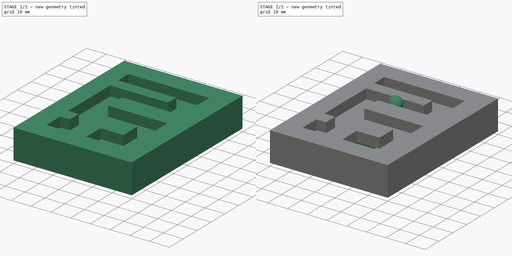
[diagram: build sequence overview — one tinted view per stage of 2, left to right]
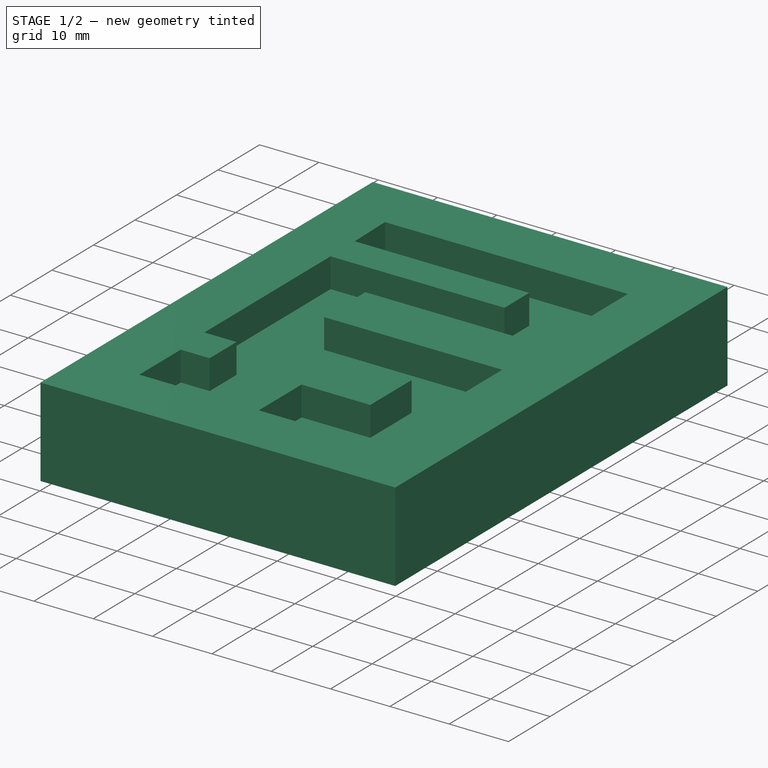
[diagram: stage 1 of 2 — iso view after this stage's code; geometry added in this stage tinted green]
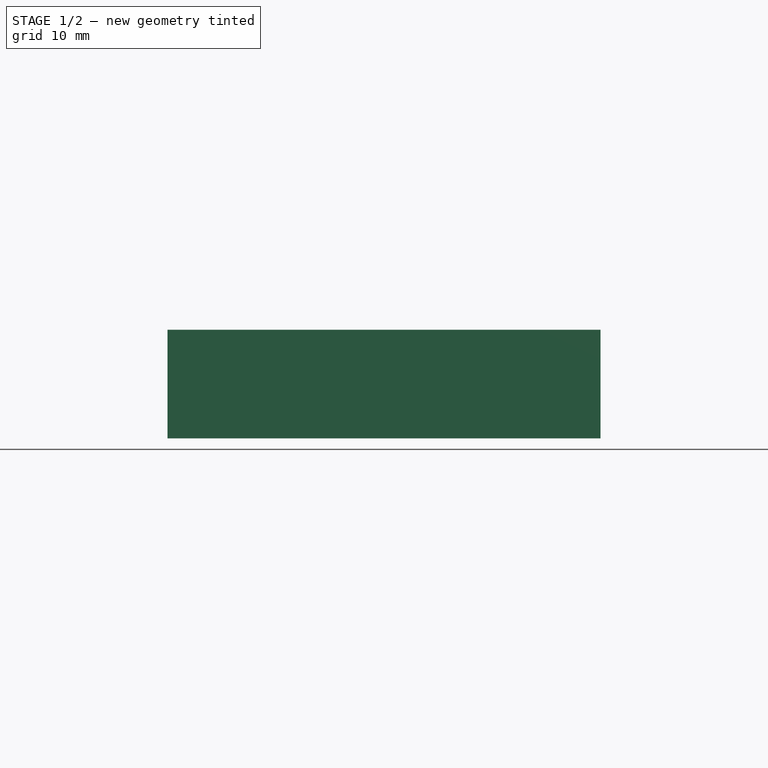
[diagram: stage 1 of 2 — front view after this stage's code; geometry added in this stage tinted green]
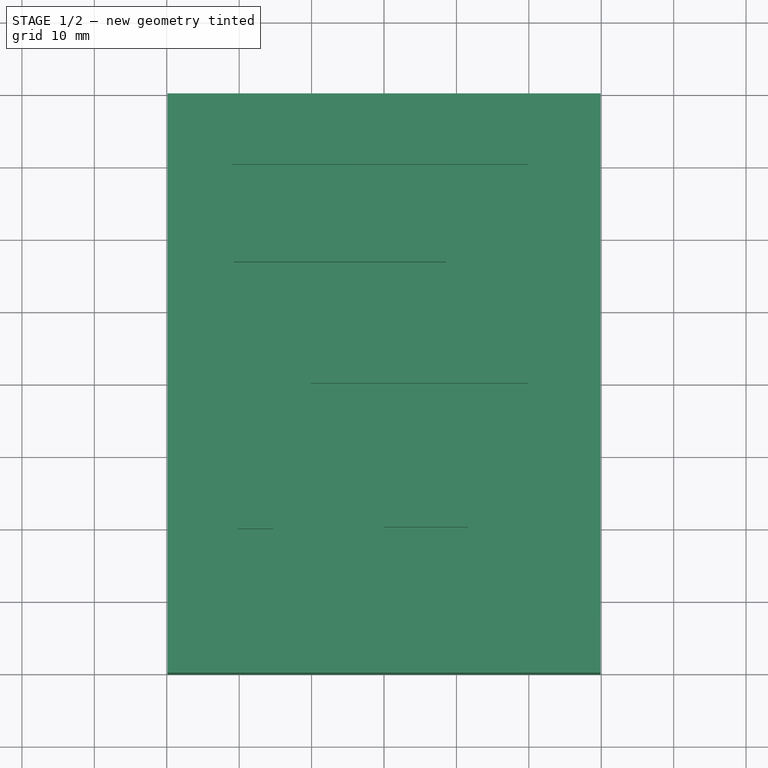
[diagram: stage 1 of 2 — top view after this stage's code; geometry added in this stage tinted green]
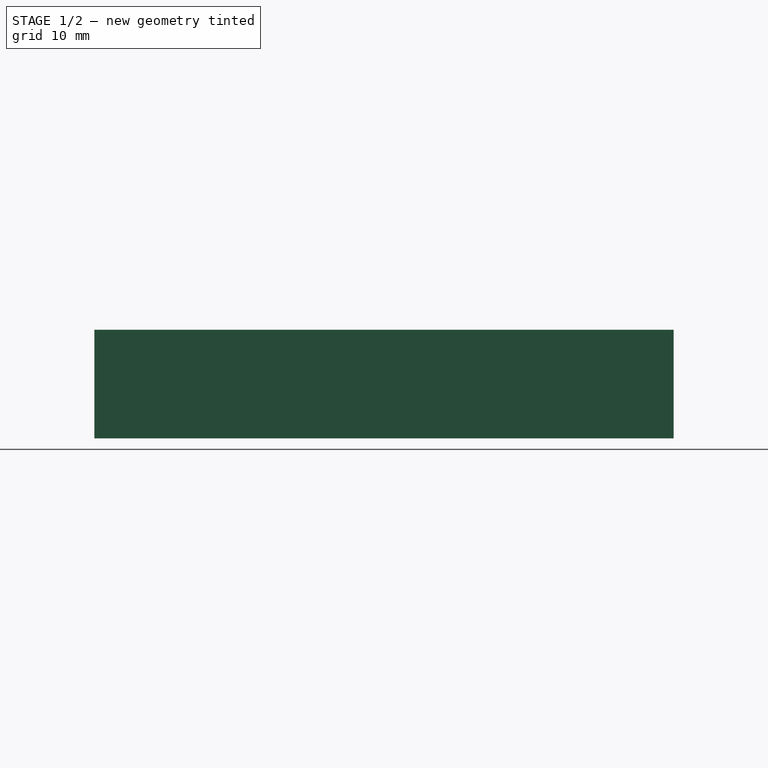
[diagram: stage 1 of 2 — right view after this stage's code; geometry added in this stage tinted green]
FCSTD DOCUMENT  (FreeCAD 1.0R39319 (Git))
Label: ojt1_t17r03_labyrinth
License: All rights reserved
LicenseURL: https://en.wikipedia.org/wiki/All_rights_reserved
objects: Sketcher::SketchObject×3, PartDesign::Pocket×2, PartDesign::Pad×1, Part::Sphere×1, PartDesign::Body×1
note: 17 computed .brp shape members not serialized (recipe doc carries the construction recipe); baked Part::Feature solids carry a one-line shape summary decoded from their .brp

FEATURE [Sketcher::SketchObject] Sketch
  ArcFitTolerance = 1e-06
  AttachmentSupport = -> [XY_Plane]
  FullyConstrained = false
  MakeInternals = false
  MapMode = 5
  sketch-geometry (4):
    g0: LineSegment StartX=-29.902 StartY=40.0002 StartZ=0 EndX=29.9019 EndY=40.0002 EndZ=0
    g1: LineSegment StartX=29.9019 StartY=40.0002 StartZ=0 EndX=29.9019 EndY=-39.9998 EndZ=0
    g2: LineSegment StartX=29.9019 StartY=-39.9998 StartZ=0 EndX=-29.902 EndY=-39.9998 EndZ=0
    g3: LineSegment StartX=-29.902 StartY=-39.9998 StartZ=0 EndX=-29.902 EndY=40.0002 EndZ=0
  constraints (8):
    c: Horizontal(g0)
    c: Coincident(g1,g0)
    c: Vertical(g1)
    c: Coincident(g2,g1)
    c: Horizontal(g2)
    c: Coincident(g3,g2)
    c: Coincident(g3,g0)
    c: Vertical(g3)
FEATURE [PartDesign::Pad] Pad
  Direction = (0,0,1)
  Length = 15
  Length2 = 10
  Profile = -> Sketch
  ReferenceAxis = -> Sketch [N_Axis]
  Refine = true
  Suppressed = false
  Type = 0
FEATURE [Sketcher::SketchObject] Sketch001
  ArcFitTolerance = 1e-06
  AttachmentSupport = -> [Pad]
  FullyConstrained = false
  MakeInternals = false
  MapMode = 5
  Placement = pos=(0,0,15) rot=(0,0,1;0rad)
  sketch-geometry (22):
    g0: LineSegment StartX=-21.0129 StartY=30.243 StartZ=0 EndX=19.9337 EndY=30.243 EndZ=0
    g1: LineSegment StartX=19.9337 StartY=30.243 StartZ=0 EndX=19.9337 EndY=9.93158 EndZ=0
    g2: LineSegment StartX=19.9337 StartY=9.93158 StartZ=0 EndX=-10.0865 EndY=9.93158 EndZ=0
    g3: LineSegment StartX=-10.0865 StartY=9.93158 StartZ=0 EndX=-10.0865 EndY=0 EndZ=0
    g4: LineSegment StartX=-10.0865 StartY=0 StartZ=0 EndX=19.9337 EndY=0 EndZ=0
    g5: LineSegment StartX=19.9337 StartY=0 StartZ=0 EndX=19.9337 EndY=-30.1416 EndZ=0
    g6: LineSegment StartX=19.9337 StartY=-30.1416 StartZ=0 EndX=0 EndY=-30.1416 EndZ=0
    g7: LineSegment StartX=0 StartY=-30.1416 StartZ=0 EndX=0 EndY=-19.8611 EndZ=0
    g8: LineSegment StartX=0 StartY=-19.8611 StartZ=0 EndX=11.6026 EndY=-19.8611 EndZ=0
    g9: LineSegment StartX=11.6026 StartY=-19.8611 StartZ=0 EndX=11.6026 EndY=-9.92966 EndZ=0
    g10: LineSegment StartX=11.6026 StartY=-9.92966 StartZ=0 EndX=-7.8056 EndY=-9.92966 EndZ=0
    g11: LineSegment StartX=-7.8056 StartY=-9.92966 StartZ=0 EndX=-7.8056 EndY=-30.0456 EndZ=0
    g12: LineSegment StartX=-7.8056 StartY=-30.0456 StartZ=0 EndX=-20.1999 EndY=-30.0456 EndZ=0
    g13: LineSegment StartX=-20.1999 StartY=-30.0456 StartZ=0 EndX=-20.1999 EndY=-20.0882 EndZ=0
    g14: LineSegment StartX=-20.1999 StartY=-20.0882 StartZ=0 EndX=-15.3254 EndY=-20.0882 EndZ=0
    g15: LineSegment StartX=-15.3254 StartY=-20.0882 StartZ=0 EndX=-15.3254 EndY=-13.6106 EndZ=0
    g16: LineSegment StartX=-15.3254 StartY=-13.6106 StartZ=0 EndX=-20.7525 EndY=-13.6106 EndZ=0
    g17: LineSegment StartX=-20.7525 StartY=-13.6106 StartZ=0 EndX=-20.7525 EndY=16.7627 EndZ=0
    g18: LineSegment StartX=-20.7525 StartY=16.7627 StartZ=0 EndX=8.57381 EndY=16.7627 EndZ=0
    g19: LineSegment StartX=8.57381 StartY=16.7627 StartZ=0 EndX=8.57381 EndY=22.7151 EndZ=0
    g20: LineSegment StartX=8.57381 StartY=22.7151 StartZ=0 EndX=-20.8378 EndY=22.7151 EndZ=0
    g21: LineSegment StartX=-20.8378 StartY=22.7151 StartZ=0 EndX=-21.0129 EndY=30.243 EndZ=0
  constraints (44):
    c: Horizontal(g0)
    c: Coincident(g1,g0)
    c: Vertical(g1)
    c: Coincident(g2,g1)
    c: Horizontal(g2)
    c: Coincident(g3,g2)
    c: PointOnObject(g3,g-1)
    c: Vertical(g3)
    c: Coincident(g4,g3)
    c: PointOnObject(g4,g-1)
    c: Coincident(g5,g4)
    c: Vertical(g5)
    c: Coincident(g6,g5)
    c: PointOnObject(g6,g-2)
    c: Horizontal(g6)
    c: Coincident(g7,g6)
    c: PointOnObject(g7,g-2)
    c: Coincident(g8,g7)
    c: Horizontal(g8)
    c: Coincident(g9,g8)
    c: Vertical(g9)
    c: Coincident(g10,g9)
    c: Horizontal(g10)
    c: Coincident(g11,g10)
    c: Vertical(g11)
    c: Coincident(g12,g11)
    c: Horizontal(g12)
    c: Coincident(g13,g12)
    c: Vertical(g13)
    c: Coincident(g14,g13)
    c: Horizontal(g14)
    c: Vertical(g15)
    c: Coincident(g16,g15)
    c: Horizontal(g16)
    c: Coincident(g17,g16)
    c: Vertical(g17)
    c: Coincident(g18,g17)
    c: Horizontal(g18)
    c: Coincident(g19,g18)
    c: Vertical(g19)
    c: Coincident(g20,g19)
    c: Horizontal(g20)
    c: Coincident(g21,g20)
    c: Coincident(g21,g0)
FEATURE [PartDesign::Pocket] Pocket
  BaseFeature = -> Pad
  Direction = (0,0,-1)
  Length = 5
  Length2 = 5
  Profile = -> Sketch001
  ReferenceAxis = -> Sketch001 [N_Axis]
  Refine = true
  Suppressed = false
  Type = 0
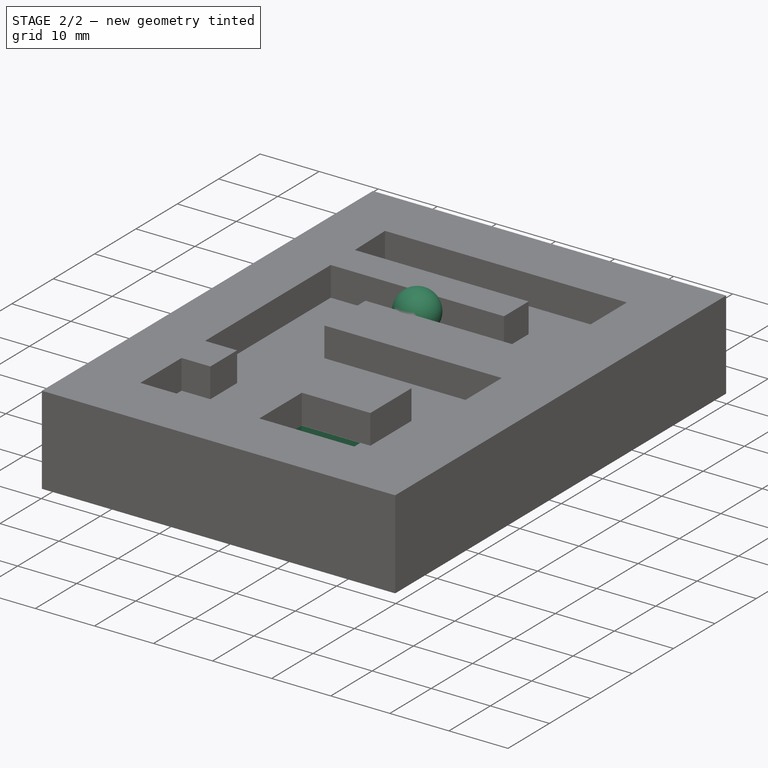
[diagram: stage 2 of 2 — iso view after this stage's code; geometry added in this stage tinted green]
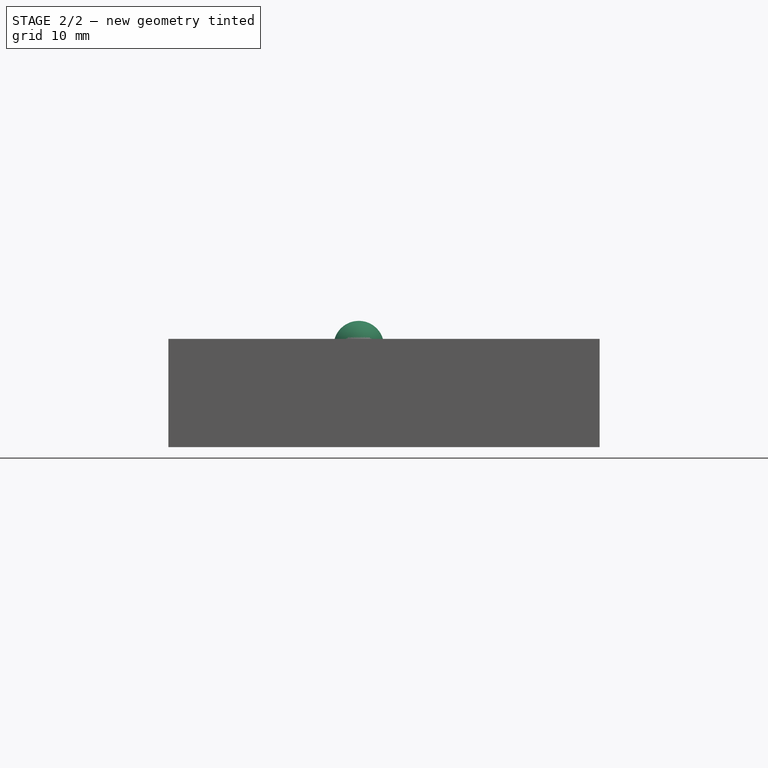
[diagram: stage 2 of 2 — front view after this stage's code; geometry added in this stage tinted green]
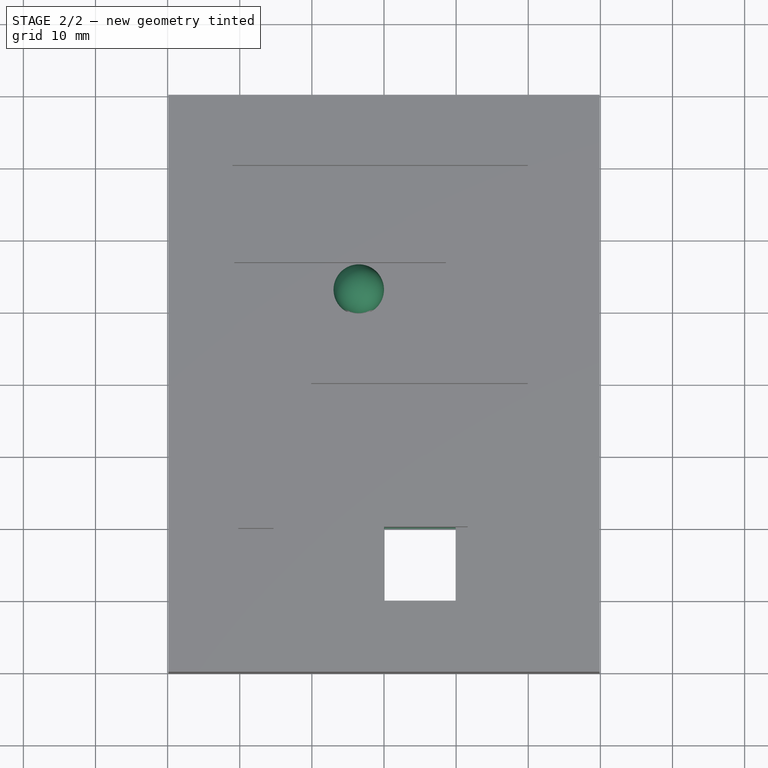
[diagram: stage 2 of 2 — top view after this stage's code; geometry added in this stage tinted green]
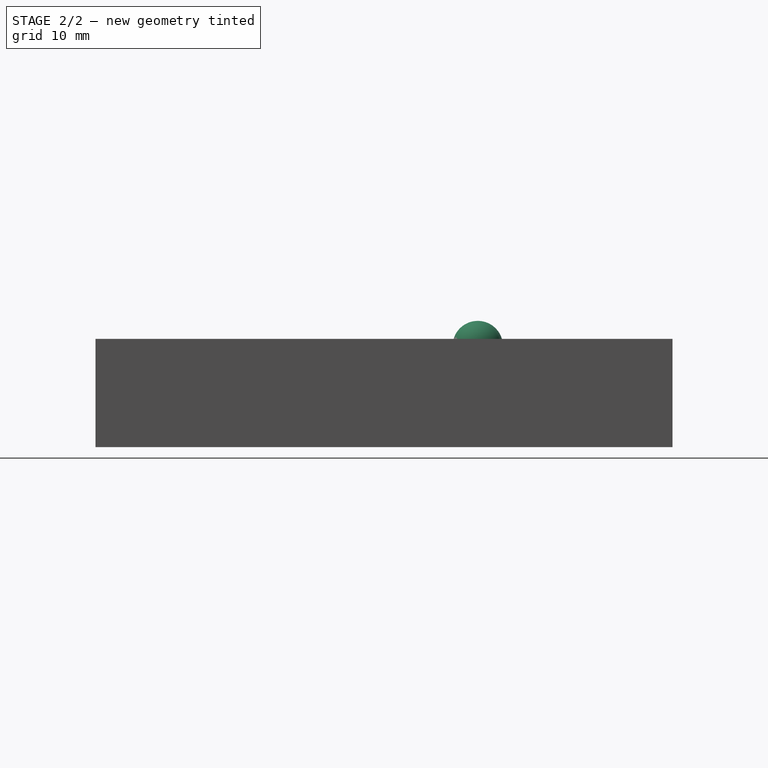
[diagram: stage 2 of 2 — right view after this stage's code; geometry added in this stage tinted green]
FEATURE [Part::Sphere] Sphere  label="Esfera"
  Angle1 = -90
  Angle2 = 90
  Angle3 = 360
  AttacherType = Attacher::AttachEngine3D
  Placement = pos=(-3.5,13,14) rot=(0,0,1;0rad)
  Radius = 3.5
FEATURE [Sketcher::SketchObject] Sketch002
  ArcFitTolerance = 1e-06
  AttachmentSupport = -> [Pocket]
  FullyConstrained = false
  MakeInternals = false
  MapMode = 5
  Placement = pos=(0,0,10) rot=(0,0,1;0rad)
  sketch-geometry (4):
    g0: LineSegment StartX=0 StartY=-19.9162 StartZ=0 EndX=9.92532 EndY=-19.9162 EndZ=0
    g1: LineSegment StartX=9.92532 StartY=-19.9162 StartZ=0 EndX=9.92532 EndY=-30.1473 EndZ=0
    g2: LineSegment StartX=9.92532 StartY=-30.1473 StartZ=0 EndX=0 EndY=-30.1473 EndZ=0
    g3: LineSegment StartX=0 StartY=-30.1473 StartZ=0 EndX=0 EndY=-19.9162 EndZ=0
  constraints (9):
    c: PointOnObject(g0,g-2)
    c: Horizontal(g0)
    c: Coincident(g1,g0)
    c: Vertical(g1)
    c: Coincident(g2,g1)
    c: PointOnObject(g2,g-2)
    c: Horizontal(g2)
    c: Coincident(g3,g2)
    c: Coincident(g3,g0)
FEATURE [PartDesign::Pocket] Pocket001
  BaseFeature = -> Pocket
  Direction = (0,0,-1)
  Length = 20
  Length2 = 5
  Profile = -> Sketch002
  ReferenceAxis = -> Sketch002 [N_Axis]
  Refine = true
  Suppressed = false
  Type = 0
FEATURE [PartDesign::Body] Body  label="Cos"
  AllowCompound = false
  Group = -> [Sketch,Pad,Sketch001,Pocket,Sketch002,Pocket001]
  Origin = -> Origin
  Tip = -> Pocket001
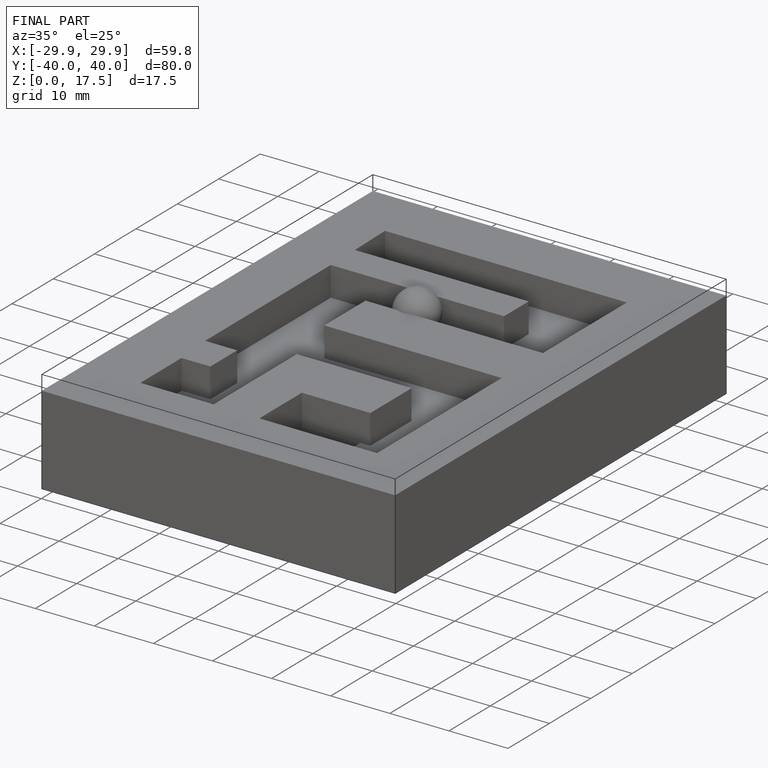
[diagram: finished part — iso view with bounding-box wireframe]
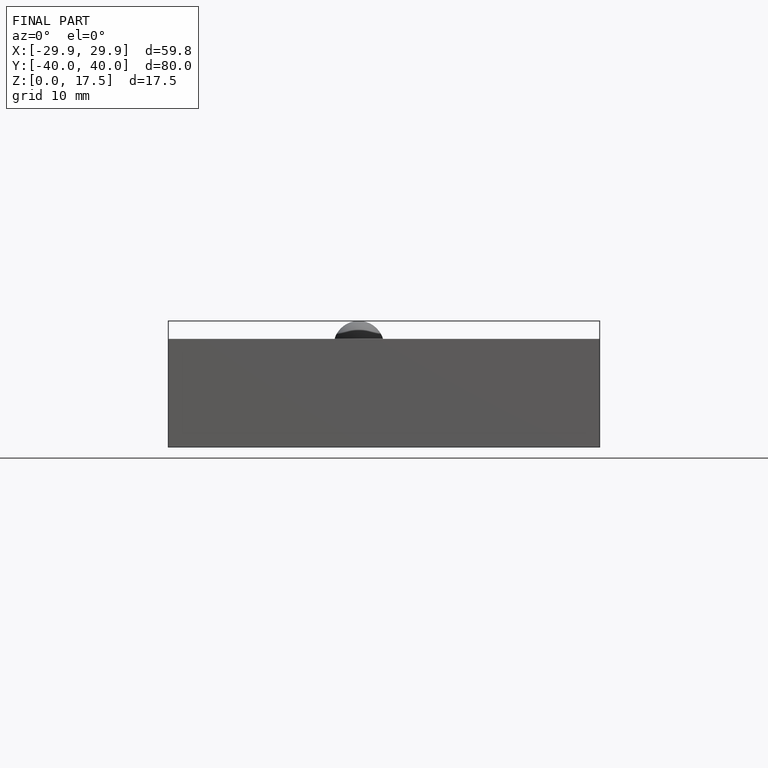
[diagram: finished part — front view with bounding-box wireframe]
